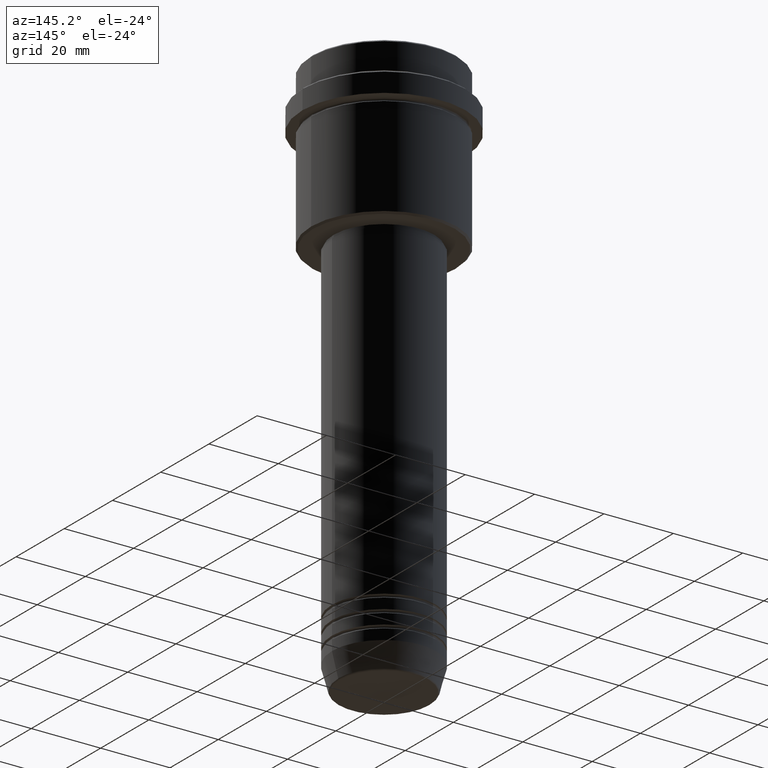
[diagram: clean part render]
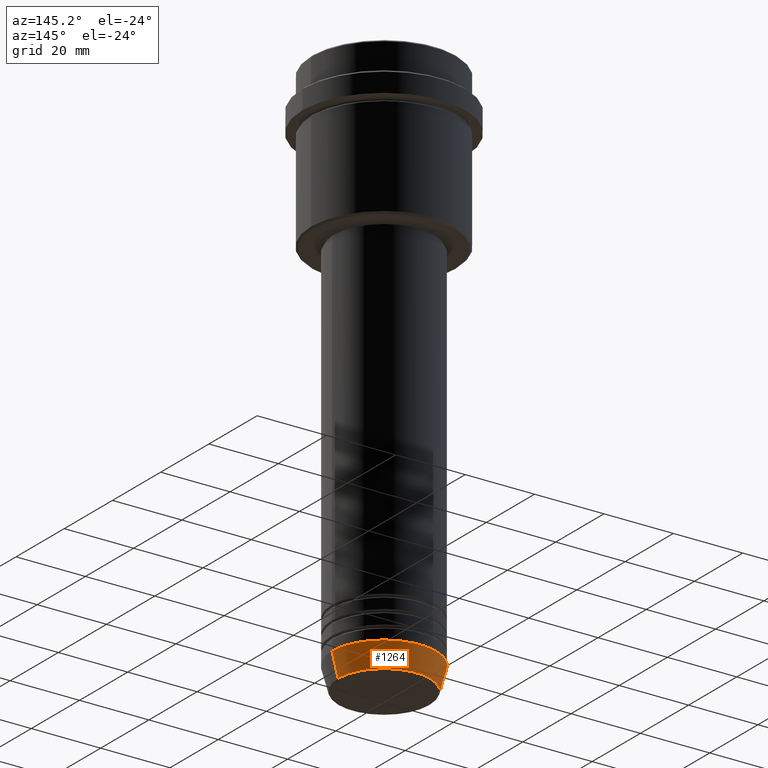
[diagram: same view with one face highlighted and labeled with its STEP entity id]
A machine part, auxiliary view. The second image highlights one B-rep face of the part: STEP entity #1264.
In plain terms, the highlighted conical surface has half-angle 15 deg.
Its self-contained STEP definition (entity closure, byte-faithful):
#14 = VECTOR ( 'NONE', #372, 1000.000000000000000 ) ;
#56 = EDGE_CURVE ( 'NONE', #1078, #796, #619, .T. ) ;
#66 = CARTESIAN_POINT ( 'NONE',  ( 0.000000000000000000, 0.000000000000000000, -153.0000000000000000 ) ) ;
#138 = EDGE_CURVE ( 'NONE', #158, #1078, #627, .T. ) ;
#158 = VERTEX_POINT ( 'NONE', #1224 ) ;
#205 = CIRCLE ( 'NONE', #1320, 15.00000000000000000 ) ;
#228 = ORIENTED_EDGE ( 'NONE', *, *, #283, .F. ) ;
#283 = EDGE_CURVE ( 'NONE', #1197, #796, #205, .T. ) ;
#318 = DIRECTION ( 'NONE',  ( -0.000000000000000000, -0.000000000000000000, 1.000000000000000000 ) ) ;
#372 = DIRECTION ( 'NONE',  ( 0.2588190451025213501, 0.000000000000000000, 0.9659258262890680902 ) ) ;
#419 = ORIENTED_EDGE ( 'NONE', *, *, #56, .T. ) ;
#500 = VECTOR ( 'NONE', #841, 1000.000000000000000 ) ;
#588 = LINE ( 'NONE', #932, #14 ) ;
#591 = DIRECTION ( 'NONE',  ( 1.000000000000000000, 0.000000000000000000, 0.000000000000000000 ) ) ;
#602 = CARTESIAN_POINT ( 'NONE',  ( 0.000000000000000000, 0.000000000000000000, -153.0000000000000000 ) ) ;
#619 = LINE ( 'NONE', #1176, #500 ) ;
#627 = CIRCLE ( 'NONE', #1247, 13.22365507213719305 ) ;
#754 = DIRECTION ( 'NONE',  ( 1.000000000000000000, 0.000000000000000000, 0.000000000000000000 ) ) ;
#791 = EDGE_CURVE ( 'NONE', #158, #1197, #588, .T. ) ;
#796 = VERTEX_POINT ( 'NONE', #816 ) ;
#816 = CARTESIAN_POINT ( 'NONE',  ( -15.00000000000000000, 1.836970198721029589E-15, -153.0000000000000000 ) ) ;
#841 = DIRECTION ( 'NONE',  ( -0.2588190451025213501, 3.169619151431772337E-17, 0.9659258262890680902 ) ) ;
#857 = CARTESIAN_POINT ( 'NONE',  ( 0.000000000000000000, 0.000000000000000000, -159.6294095225512137 ) ) ;
#907 = EDGE_LOOP ( 'NONE', ( #1207, #419, #228, #1076 ) ) ;
#917 = DIRECTION ( 'NONE',  ( -0.000000000000000000, -0.000000000000000000, 1.000000000000000000 ) ) ;
#928 = DIRECTION ( 'NONE',  ( -0.000000000000000000, -0.000000000000000000, 1.000000000000000000 ) ) ;
#932 = CARTESIAN_POINT ( 'NONE',  ( 15.00000000000000000, 0.000000000000000000, -153.0000000000000000 ) ) ;
#1020 = FACE_OUTER_BOUND ( 'NONE', #907, .T. ) ;
#1076 = ORIENTED_EDGE ( 'NONE', *, *, #791, .F. ) ;
#1078 = VERTEX_POINT ( 'NONE', #1085 ) ;
#1085 = CARTESIAN_POINT ( 'NONE',  ( -13.22365507213719305, 1.728200442216588583E-15, -159.6294095225512137 ) ) ;
#1176 = CARTESIAN_POINT ( 'NONE',  ( -15.00000000000000000, 1.836970198721029589E-15, -153.0000000000000000 ) ) ;
#1197 = VERTEX_POINT ( 'NONE', #1243 ) ;
#1207 = ORIENTED_EDGE ( 'NONE', *, *, #138, .T. ) ;
#1224 = CARTESIAN_POINT ( 'NONE',  ( 13.22365507213719305, 0.000000000000000000, -159.6294095225512137 ) ) ;
#1226 = AXIS2_PLACEMENT_3D ( 'NONE', #602, #917, #1237 ) ;
#1237 = DIRECTION ( 'NONE',  ( 1.000000000000000000, 0.000000000000000000, 0.000000000000000000 ) ) ;
#1243 = CARTESIAN_POINT ( 'NONE',  ( 15.00000000000000000, 0.000000000000000000, -153.0000000000000000 ) ) ;
#1247 = AXIS2_PLACEMENT_3D ( 'NONE', #857, #318, #754 ) ;
#1264 = ADVANCED_FACE ( 'NONE', ( #1020 ), #1293, .T. ) ;
#1293 = CONICAL_SURFACE ( 'NONE', #1226, 15.00000000000000000, 0.2617993877991500740 ) ;
#1320 = AXIS2_PLACEMENT_3D ( 'NONE', #66, #928, #591 ) ;